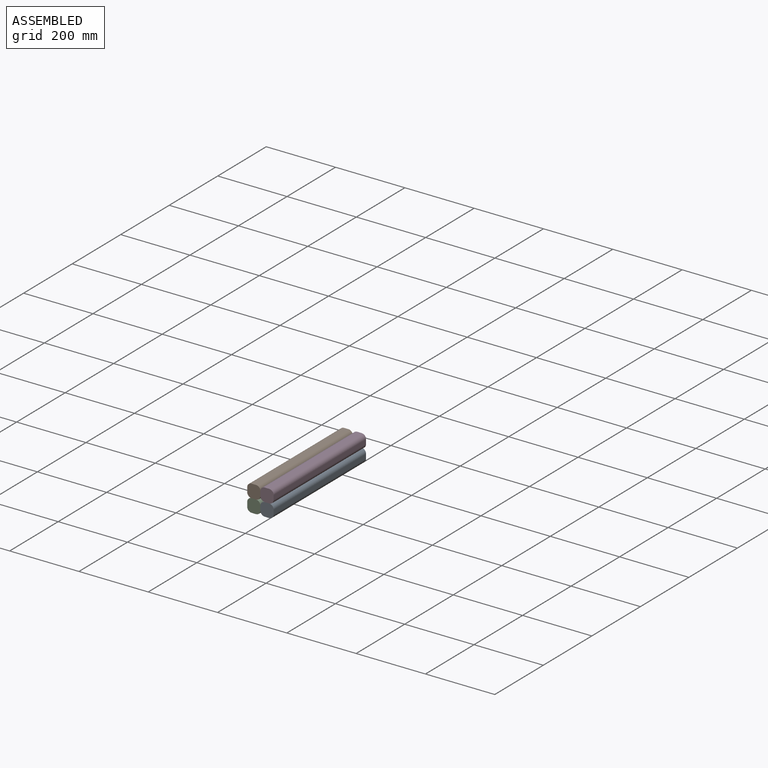
[diagram: assembled view]
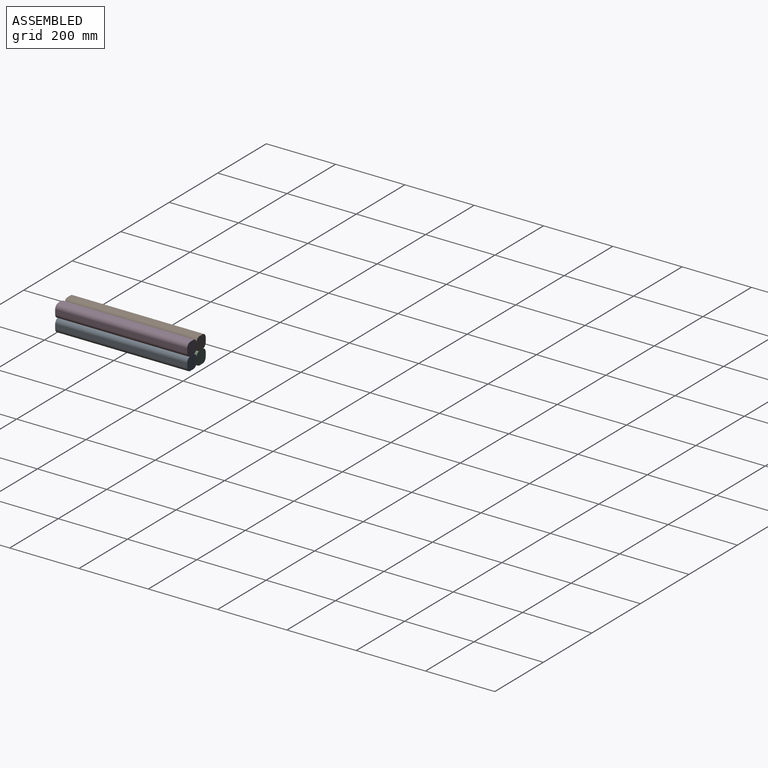
[diagram: assembled view, second angle]
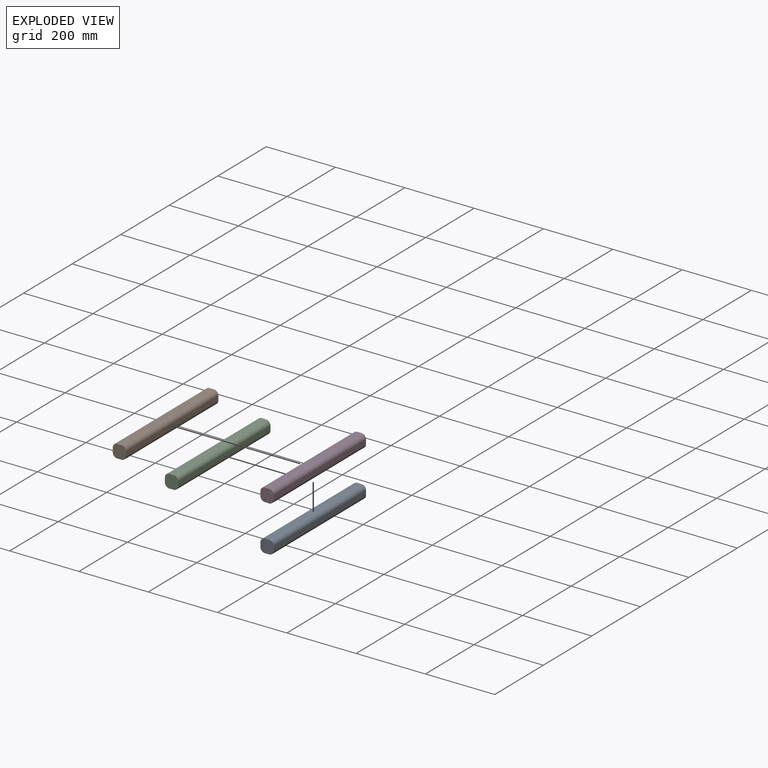
[diagram: exploded view]
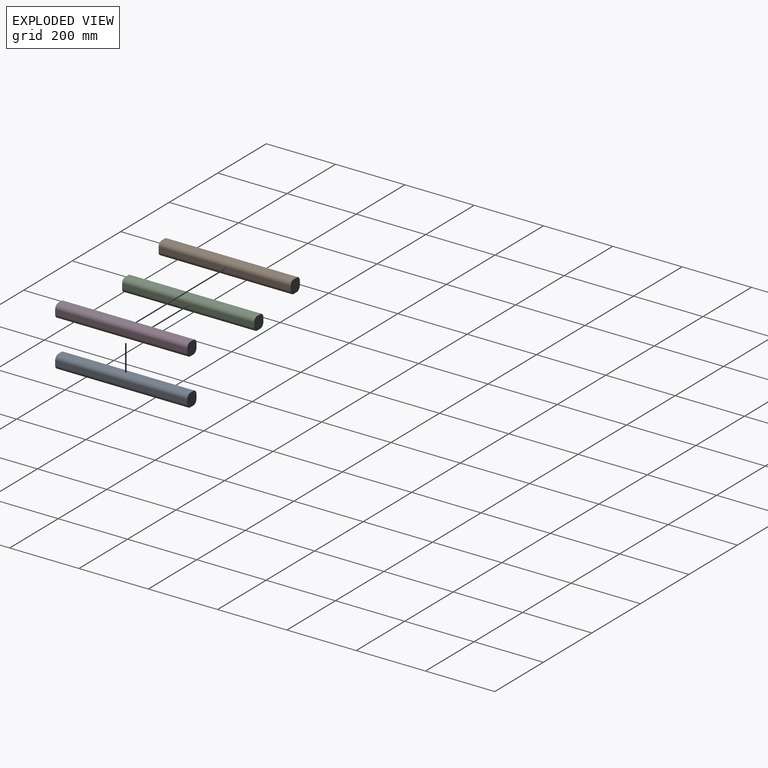
[diagram: exploded view, second angle]
ASSEMBLY  parts=4 mates=3
PART A: 10 faces, bbox 38.1x381x38.1 mm
  f0: plane 381x12.7mm, normal (-1,0,0), area 4838.7mm2, adj f4,f5,f6,f9
  f1: plane 381x12.7mm, normal (0,0,-1), area 4838.7mm2, adj f4,f5,f6,f7
  f2: plane 381x12.7mm, normal (1,0,0), area 4838.7mm2, adj f4,f5,f7,f8
  f3: plane 381x12.7mm, normal (0,0,1), area 4838.7mm2, adj f4,f5,f8,f9
  f4: plane 38.1x38.1mm, normal (0,-1,0), area 1313.2mm2, adj f0,f1,f2,f3,f6,f7,f8,f9
  f5: plane 38.1x38.1mm, normal (0,1,0), area 1313.2mm2, adj f0,f1,f2,f3,f6,f7,f8,f9
  f6: cylinder r=12.7mm len=381mm, axis (0,-1,0), area 7600.6mm2, adj f0,f1,f4,f5
  f7: cylinder r=12.7mm len=381mm, axis (0,1,0), area 7600.6mm2, adj f1,f2,f4,f5
  f8: cylinder r=12.7mm len=381mm, axis (0,-1,0), area 7600.6mm2, adj f2,f3,f4,f5
  f9: cylinder r=12.7mm len=381mm, axis (0,1,0), area 7600.6mm2, adj f0,f3,f4,f5
PART B: same geometry as A
PART C: same geometry as A
PART D: same geometry as A
PLACE A t=(-103.92,106.13,-77.21)mm
PLACE B t=(-142.02,106.13,-39.11)mm
PLACE C t=(-142.02,106.13,-77.21)mm
PLACE D t=(-103.92,106.13,-39.11)mm
MATE fastened C.f4 <-> B.f4  axis (0,1,0) through (-116.62,-274.87,-39.11)mm
MATE fastened D.f4 <-> A.f4  axis (0,-1,0) through (-91.22,-274.87,-39.11)mm
MATE fastened C.f4 <-> A.f4  axis (0,-1,0) through (-103.92,-274.87,-64.51)mm
